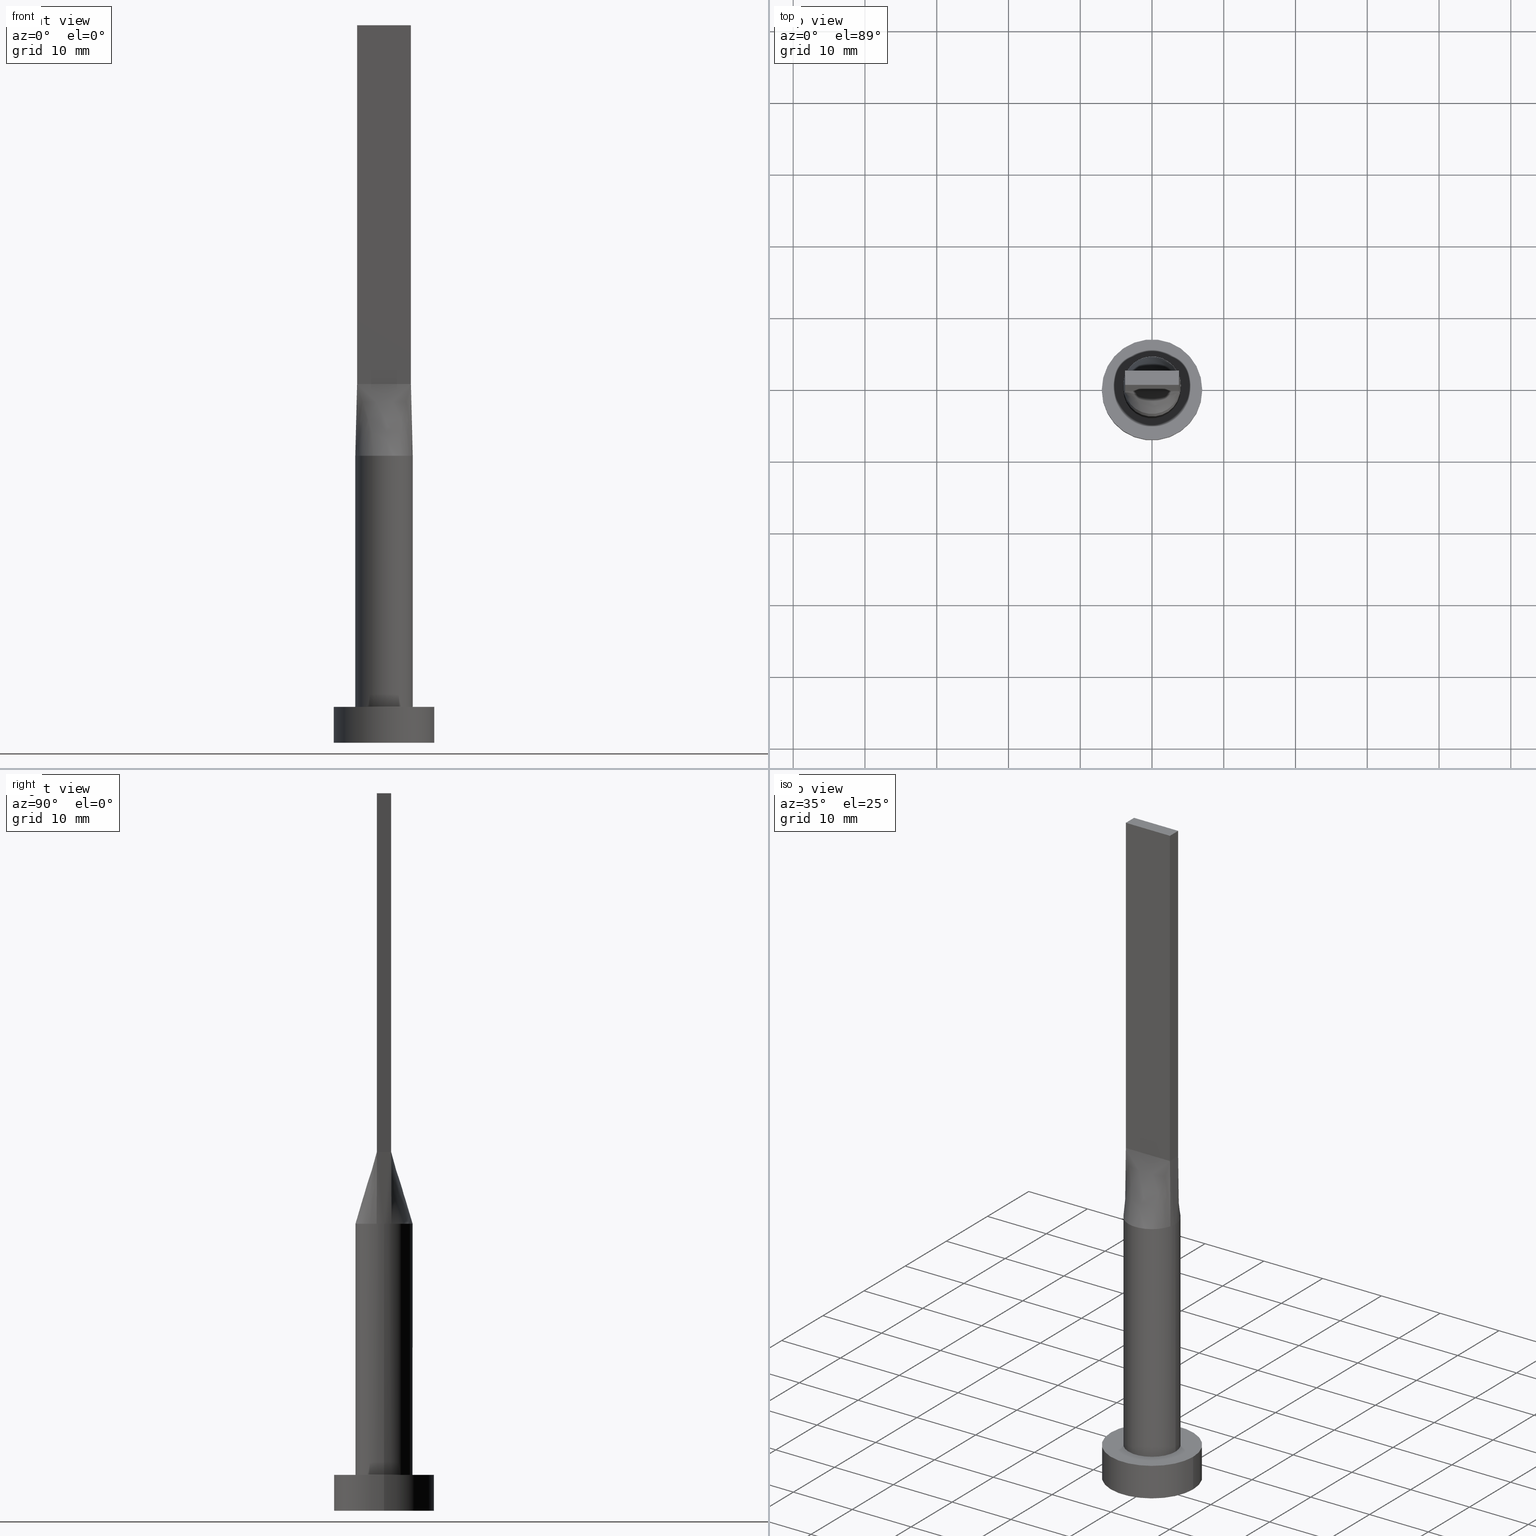
[diagram: canonical four-view strip — front | top / right | iso, engineering-drawing reading convention]
A machine part, canonical four-view strip (front | top / right | iso — engineering-drawing reading convention). The complete STEP part file that produces these views, byte-faithful:
ISO-10303-21;
HEADER;
FILE_DESCRIPTION (( 'STEP AP203' ),
    '1' );
FILE_NAME ('767d.STEP',
    '2023-02-13T09:36:29',
    ( '' ),
    ( '' ),
    'SwSTEP 2.0',
    'SolidWorks 2019',
    '' );
FILE_SCHEMA (( 'CONFIG_CONTROL_DESIGN' ));
ENDSEC;

DATA;
#1 = COORDINATED_UNIVERSAL_TIME_OFFSET ( 1, 0, .AHEAD. ) ;
#2 = CIRCLE ( 'NONE', #190, 4.000000000000000000 ) ;
#3 = DIRECTION ( 'NONE',  ( 0.000000000000000000, -0.000000000000000000, -1.000000000000000000 ) ) ;
#4 = ORIENTED_EDGE ( 'NONE', *, *, #46, .F. ) ;
#5 = AXIS2_PLACEMENT_3D ( 'NONE', #186, #388, #115 ) ;
#6 = DIRECTION ( 'NONE',  ( -0.000000000000000000, -0.000000000000000000, -1.000000000000000000 ) ) ;
#7 = APPROVAL_STATUS ( 'not_yet_approved' ) ;
#8 = VERTEX_POINT ( 'NONE', #10 ) ;
#9 = DATE_AND_TIME ( #417, #577 ) ;
#10 = CARTESIAN_POINT ( 'NONE',  ( 3.750000000000000000, 1.000000000000000000, 50.00000000000000000 ) ) ;
#11 = AXIS2_PLACEMENT_3D ( 'NONE', #215, #263, #35 ) ;
#12 = APPROVAL_PERSON_ORGANIZATION ( #230, #24, #274 ) ;
#13 = CARTESIAN_POINT ( 'NONE',  ( 1.250000000000001554, -0.9999999999999995559, 50.00000000000000000 ) ) ;
#14 = CARTESIAN_POINT ( 'NONE',  ( 1.249999999999999334, 1.000000000000000000, 50.00000000000000711 ) ) ;
#15 = EDGE_CURVE ( 'NONE', #191, #323, #188, .T. ) ;
#16 = CARTESIAN_POINT ( 'NONE',  ( 3.750000000000000000, 1.000000000000000000, 100.0000000000000000 ) ) ;
#17 = CARTESIAN_POINT ( 'NONE',  ( -3.125000000000000000, 1.000000000000000000, 50.00000000000000000 ) ) ;
#18 = APPROVAL_ROLE ( '' ) ;
#19 = CARTESIAN_POINT ( 'NONE',  ( -3.267840578657194239, -2.338604872288696956, 40.00000000000000000 ) ) ;
#20 = CARTESIAN_POINT ( 'NONE',  ( -1.250000000000000444, 1.000000000000000000, 50.00000000000000000 ) ) ;
#21 = APPLICATION_CONTEXT ( 'configuration controlled 3d designs of mechanical parts and assemblies' ) ;
#22 = EDGE_LOOP ( 'NONE', ( #206, #496, #236, #58 ) ) ;
#23 = LOCAL_TIME ( 10, 36, 29.00000000000000000, #380 ) ;
#24 = APPROVAL ( #579, 'NEUR�EN�' ) ;
#25 = LINE ( 'NONE', #386, #199 ) ;
#26 = CARTESIAN_POINT ( 'NONE',  ( 3.865212754195084699, 1.030724393897464841, 40.00000000000000000 ) ) ;
#27 = EDGE_LOOP ( 'NONE', ( #327, #463, #165, #419 ) ) ;
#28 = CARTESIAN_POINT ( 'NONE',  ( -3.124999999999999112, -0.9999999999999991118, 50.00000000000000000 ) ) ;
#29 = CARTESIAN_POINT ( 'NONE',  ( 1.940702937457743582, 3.532374760555930582, 40.00000000000000000 ) ) ;
#30 = VERTEX_POINT ( 'NONE', #101 ) ;
#31 = CARTESIAN_POINT ( 'NONE',  ( 0.000000000000000000, 0.000000000000000000, 5.000000000000000000 ) ) ;
#32 = DIRECTION ( 'NONE',  ( -0.000000000000000000, -0.000000000000000000, -1.000000000000000000 ) ) ;
#33 = AXIS2_PLACEMENT_3D ( 'NONE', #31, #528, #86 ) ;
#34 = AXIS2_PLACEMENT_3D ( 'NONE', #209, #555, #338 ) ;
#35 = DIRECTION ( 'NONE',  ( 1.000000000000000000, 0.000000000000000000, 0.000000000000000000 ) ) ;
#36 = FACE_OUTER_BOUND ( 'NONE', #84, .T. ) ;
#37 = EDGE_LOOP ( 'NONE', ( #499, #148, #304, #250 ) ) ;
#38 = EDGE_CURVE ( 'NONE', #30, #573, #104, .T. ) ;
#39 = FACE_OUTER_BOUND ( 'NONE', #566, .T. ) ;
#40 =( NAMED_UNIT ( * ) SI_UNIT ( $, .STERADIAN. ) SOLID_ANGLE_UNIT ( ) );
#41 = DESIGN_CONTEXT ( 'detailed design', #21, 'design' ) ;
#42 = ORIENTED_EDGE ( 'NONE', *, *, #38, .F. ) ;
#43 = CARTESIAN_POINT ( 'NONE',  ( 3.953459813730020311, 0.6987003947724492736, 40.00000000000000000 ) ) ;
#44 = CARTESIAN_POINT ( 'NONE',  ( 0.000000000000000000, 0.000000000000000000, 40.00000000000000000 ) ) ;
#45 = FACE_OUTER_BOUND ( 'NONE', #373, .T. ) ;
#46 = EDGE_CURVE ( 'NONE', #8, #281, #371, .T. ) ;
#47 = CC_DESIGN_APPROVAL ( #24, ( #444 ) ) ;
#48 = PLANE ( 'NONE',  #183 ) ;
#49 = CARTESIAN_POINT ( 'NONE',  ( -3.953459813730020311, -0.6987003947724488295, 40.00000000000000000 ) ) ;
#50 = PLANE ( 'NONE',  #387 ) ;
#51 = CALENDAR_DATE ( 2023, 13, 2 ) ;
#52 = EDGE_LOOP ( 'NONE', ( #412, #122, #64, #108 ) ) ;
#53 = FACE_OUTER_BOUND ( 'NONE', #27, .T. ) ;
#54 = PERSON_AND_ORGANIZATION ( #214, #149 ) ;
#55 = CARTESIAN_POINT ( 'NONE',  ( 3.807469879202492802, -1.015325301120664214, 45.00000000000000000 ) ) ;
#56 = AXIS2_PLACEMENT_3D ( 'NONE', #481, #406, #177 ) ;
#57 = EDGE_CURVE ( 'NONE', #529, #30, #237, .T. ) ;
#58 = ORIENTED_EDGE ( 'NONE', *, *, #57, .T. ) ;
#59 = ORIENTED_EDGE ( 'NONE', *, *, #273, .T. ) ;
#60 = PERSON_AND_ORGANIZATION ( #214, #149 ) ;
#61 = DIRECTION ( 'NONE',  ( 0.000000000000000000, 0.000000000000000000, 1.000000000000000000 ) ) ;
#62 = CC_DESIGN_DATE_AND_TIME_ASSIGNMENT ( #320, #282, ( #174 ) ) ;
#63 = CARTESIAN_POINT ( 'NONE',  ( 3.267840578657193795, 2.338604872288698289, 40.00000000000000000 ) ) ;
#64 = ORIENTED_EDGE ( 'NONE', *, *, #105, .F. ) ;
#65 = PRODUCT ( '767d', '767d', '', ( #129 ) ) ;
#66 = PERSON_AND_ORGANIZATION_ROLE ( 'creator' ) ;
#67 = CARTESIAN_POINT ( 'NONE',  ( -3.653499896451231521, -1.673258289339057514, 40.00000000000001421 ) ) ;
#68 = CARTESIAN_POINT ( 'NONE',  ( -3.009488128496037529, 2.672487015486668671, 39.99999999999998579 ) ) ;
#69 = ORIENTED_EDGE ( 'NONE', *, *, #372, .T. ) ;
#70 = DIRECTION ( 'NONE',  ( 1.000000000000000000, -8.673617379884035472E-17, 0.000000000000000000 ) ) ;
#71 = FACE_OUTER_BOUND ( 'NONE', #216, .T. ) ;
#72 = VERTEX_POINT ( 'NONE', #278 ) ;
#73 = EDGE_CURVE ( 'NONE', #30, #323, #459, .T. ) ;
#74 = CARTESIAN_POINT ( 'NONE',  ( -3.750000000000000000, -0.9999999999999991118, 50.00000000000000000 ) ) ;
#75 = AXIS2_PLACEMENT_3D ( 'NONE', #526, #524, #489 ) ;
#76 = CARTESIAN_POINT ( 'NONE',  ( 3.124999999999999112, 1.000000000000000000, 50.00000000000000000 ) ) ;
#77 = ORIENTED_EDGE ( 'NONE', *, *, #413, .F. ) ;
#78 = CIRCLE ( 'NONE', #475, 4.000000000000000000 ) ;
#79 = DIRECTION ( 'NONE',  ( -0.000000000000000000, -0.000000000000000000, -1.000000000000000000 ) ) ;
#80 = CARTESIAN_POINT ( 'NONE',  ( 1.023074425454087999, 3.898373771260456255, 40.00000000000000000 ) ) ;
#81 = CARTESIAN_POINT ( 'NONE',  ( -3.009488128496037529, 2.672487015486668671, 39.99999999999998579 ) ) ;
#82 = FACE_OUTER_BOUND ( 'NONE', #37, .T. ) ;
#83 = CARTESIAN_POINT ( 'NONE',  ( 3.953459813730019423, -0.6987003947724502728, 40.00000000000000000 ) ) ;
#84 = EDGE_LOOP ( 'NONE', ( #398, #59, #192, #175 ) ) ;
#85 = LOCAL_TIME ( 10, 36, 29.00000000000000000, #1 ) ;
#86 = DIRECTION ( 'NONE',  ( 1.000000000000000000, 0.000000000000000000, 0.000000000000000000 ) ) ;
#87 = DIRECTION ( 'NONE',  ( 1.000000000000000000, -6.217248937900876626E-15, 0.000000000000000000 ) ) ;
#88 = LINE ( 'NONE', #267, #111 ) ;
#89 = CARTESIAN_POINT ( 'NONE',  ( -3.865220763612065902, -1.030726602927787949, 40.00000000000000000 ) ) ;
#90 = EDGE_CURVE ( 'NONE', #234, #431, #2, .T. ) ;
#91 = CARTESIAN_POINT ( 'NONE',  ( -3.781952206537765537, 1.341853921743403788, 40.00000000000000000 ) ) ;
#92 =( NAMED_UNIT ( * ) PLANE_ANGLE_UNIT ( ) SI_UNIT ( $, .RADIAN. ) );
#93 = VECTOR ( 'NONE', #146, 1000.000000000000000 ) ;
#94 = LINE ( 'NONE', #179, #435 ) ;
#95 = CIRCLE ( 'NONE', #5, 7.000000000000000000 ) ;
#96 = CARTESIAN_POINT ( 'NONE',  ( -7.000000000000000000, 0.000000000000000000, 5.000000000000000000 ) ) ;
#97 = DATE_AND_TIME ( #181, #85 ) ;
#98 = DIRECTION ( 'NONE',  ( -0.01149316269309399834, -0.003064843384825015424, -0.9999292544707033548 ) ) ;
#99 = DIRECTION ( 'NONE',  ( 0.000000000000000000, -1.000000000000000000, 0.000000000000000000 ) ) ;
#100 = APPLICATION_PROTOCOL_DEFINITION ( 'international standard', 'config_control_design', 1994, #21 ) ;
#101 = CARTESIAN_POINT ( 'NONE',  ( -3.750000000000000000, -0.9999999999999991118, 50.00000000000000000 ) ) ;
#102 = ADVANCED_FACE ( 'NONE', ( #429, #346 ), #470, .T. ) ;
#103 = ORIENTED_EDGE ( 'NONE', *, *, #422, .T. ) ;
#104 = LINE ( 'NONE', #378, #359 ) ;
#105 = EDGE_CURVE ( 'NONE', #358, #527, #512, .T. ) ;
#106 = CARTESIAN_POINT ( 'NONE',  ( -3.781952206537765981, -1.341853921743402900, 39.99999999999999289 ) ) ;
#107 = DIRECTION ( 'NONE',  ( 0.000000000000000000, 0.000000000000000000, 1.000000000000000000 ) ) ;
#108 = ORIENTED_EDGE ( 'NONE', *, *, #145, .T. ) ;
#109 = CARTESIAN_POINT ( 'NONE',  ( 3.437500000000000444, -0.9999999999999995559, 50.00000000000000000 ) ) ;
#110 = CARTESIAN_POINT ( 'NONE',  ( 3.781952206537764205, 1.341853921743403788, 39.99999999999999289 ) ) ;
#111 = VECTOR ( 'NONE', #269, 1000.000000000000000 ) ;
#112 = VECTOR ( 'NONE', #161, 1000.000000000000000 ) ;
#113 = ORIENTED_EDGE ( 'NONE', *, *, #366, .F. ) ;
#114 = LINE ( 'NONE', #554, #411 ) ;
#115 = DIRECTION ( 'NONE',  ( 1.000000000000000000, 0.000000000000000000, 0.000000000000000000 ) ) ;
#116 = CARTESIAN_POINT ( 'NONE',  ( 3.865212754195084699, 1.030724393897464841, 40.00000000000000000 ) ) ;
#117 = DIRECTION ( 'NONE',  ( -1.000000000000000000, 0.000000000000000000, 0.000000000000000000 ) ) ;
#118 = ADVANCED_FACE ( 'NONE', ( #502 ), #420, .T. ) ;
#119 = CLOSED_SHELL ( 'NONE', ( #160, #198, #462, #102, #168, #246, #118, #266, #311, #472, #356, #570, #279, #317, #551 ) ) ;
#120 = CARTESIAN_POINT ( 'NONE',  ( -2.499999999999998668, -0.9999999999999991118, 50.00000000000000000 ) ) ;
#121 = DIRECTION ( 'NONE',  ( -0.000000000000000000, -0.000000000000000000, -1.000000000000000000 ) ) ;
#122 = ORIENTED_EDGE ( 'NONE', *, *, #137, .F. ) ;
#123 = CIRCLE ( 'NONE', #414, 4.000000000000000000 ) ;
#124 = CARTESIAN_POINT ( 'NONE',  ( -0.5121855420560009753, 4.000000000000000888, 40.00000000000000000 ) ) ;
#125 = DIRECTION ( 'NONE',  ( -0.000000000000000000, -0.000000000000000000, -1.000000000000000000 ) ) ;
#126 = ORIENTED_EDGE ( 'NONE', *, *, #532, .T. ) ;
#127 = EDGE_CURVE ( 'NONE', #389, #401, #25, .T. ) ;
#128 = CARTESIAN_POINT ( 'NONE',  ( 4.000000000000000000, -0.3494497975066829798, 39.99999999999999289 ) ) ;
#129 = MECHANICAL_CONTEXT ( 'NONE', #318, 'mechanical' ) ;
#130 = EDGE_LOOP ( 'NONE', ( #569, #504, #151, #544 ) ) ;
#131 = CARTESIAN_POINT ( 'NONE',  ( 3.749999999999999556, -0.3333333333333329818, 50.00000000000000000 ) ) ;
#132 = PERSON_AND_ORGANIZATION ( #214, #149 ) ;
#133 = ORIENTED_EDGE ( 'NONE', *, *, #15, .F. ) ;
#134 = CIRCLE ( 'NONE', #253, 4.000000000000000000 ) ;
#135 = CYLINDRICAL_SURFACE ( 'NONE', #574, 4.000000000000000000 ) ;
#136 = CARTESIAN_POINT ( 'NONE',  ( 3.750000000000000000, -0.9999999999999997780, 100.0000000000000000 ) ) ;
#137 = EDGE_CURVE ( 'NONE', #527, #281, #114, .T. ) ;
#138 = DIRECTION ( 'NONE',  ( -0.01149316269309399834, 0.003064843384825015424, 0.9999292544707033548 ) ) ;
#139 = DIRECTION ( 'NONE',  ( 8.673617379884035472E-17, 1.000000000000000000, -0.000000000000000000 ) ) ;
#140 = CARTESIAN_POINT ( 'NONE',  ( -3.750000000000000000, -0.9999999999999991118, 100.0000000000000000 ) ) ;
#141 = CARTESIAN_POINT ( 'NONE',  ( -3.749999999999999556, 0.3333333333333337034, 50.00000000000000000 ) ) ;
#142 = LINE ( 'NONE', #455, #369 ) ;
#143 = CIRCLE ( 'NONE', #34, 4.000000000000000000 ) ;
#144 = CARTESIAN_POINT ( 'NONE',  ( -3.864939758404985604, -1.030650602241328428, 40.00000000000000000 ) ) ;
#145 = EDGE_CURVE ( 'NONE', #358, #8, #437, .T. ) ;
#146 = DIRECTION ( 'NONE',  ( -1.000000000000000000, -0.000000000000000000, -0.000000000000000000 ) ) ;
#147 = ORIENTED_EDGE ( 'NONE', *, *, #532, .F. ) ;
#148 = ORIENTED_EDGE ( 'NONE', *, *, #57, .F. ) ;
#149 = ORGANIZATION ( 'NEUR�EN�', 'NEUR�EN�', '' ) ;
#150 = EDGE_CURVE ( 'NONE', #431, #563, #581, .T. ) ;
#151 = ORIENTED_EDGE ( 'NONE', *, *, #73, .F. ) ;
#152 = CARTESIAN_POINT ( 'NONE',  ( -1.023074425454088221, 3.898373771260455811, 40.00000000000000000 ) ) ;
#153 = DATE_TIME_ROLE ( 'classification_date' ) ;
#154 = CARTESIAN_POINT ( 'NONE',  ( 0.000000000000000000, 0.000000000000000000, 5.000000000000000000 ) ) ;
#155 = CARTESIAN_POINT ( 'NONE',  ( -2.346407003458401253, 3.270103945996944095, 40.00000000000000000 ) ) ;
#156 = DIRECTION ( 'NONE',  ( 1.000000000000000000, 0.000000000000000000, -0.000000000000000000 ) ) ;
#157 = CARTESIAN_POINT ( 'NONE',  ( -4.000000000000000000, 0.000000000000000000, 5.000000000000000000 ) ) ;
#158 = AXIS2_PLACEMENT_3D ( 'NONE', #268, #482, #306 ) ;
#159 = CARTESIAN_POINT ( 'NONE',  ( 1.023074425454087555, -3.898373771260455811, 40.00000000000000000 ) ) ;
#160 = ADVANCED_FACE ( 'NONE', ( #39 ), #135, .T. ) ;
#161 = DIRECTION ( 'NONE',  ( -0.000000000000000000, -0.000000000000000000, -1.000000000000000000 ) ) ;
#162 = DATE_AND_TIME ( #511, #23 ) ;
#163 = CARTESIAN_POINT ( 'NONE',  ( 3.750000000000000000, 1.000000000000000000, 100.0000000000000000 ) ) ;
#164 = DIRECTION ( 'NONE',  ( 0.000000000000000000, 0.000000000000000000, 1.000000000000000000 ) ) ;
#165 = ORIENTED_EDGE ( 'NONE', *, *, #500, .F. ) ;
#166 = FACE_OUTER_BOUND ( 'NONE', #421, .T. ) ;
#167 = ORIENTED_EDGE ( 'NONE', *, *, #558, .F. ) ;
#168 = ADVANCED_FACE ( 'NONE', ( #166 ), #571, .F. ) ;
#169 = CARTESIAN_POINT ( 'NONE',  ( -1.023074425454088221, 3.898373771260455811, 40.00000000000000000 ) ) ;
#170 = DIRECTION ( 'NONE',  ( 1.000000000000000000, 0.000000000000000000, -0.000000000000000000 ) ) ;
#171 = FACE_OUTER_BOUND ( 'NONE', #395, .T. ) ;
#172 = ORIENTED_EDGE ( 'NONE', *, *, #299, .F. ) ;
#173 = CARTESIAN_POINT ( 'NONE',  ( 3.865244591400370577, -1.030732999276501527, 40.00000000000000000 ) ) ;
#174 = PRODUCT_DEFINITION ( 'NEZN�M�', '', #444, #41 ) ;
#175 = ORIENTED_EDGE ( 'NONE', *, *, #500, .T. ) ;
#176 = VECTOR ( 'NONE', #441, 1000.000000000000000 ) ;
#177 = DIRECTION ( 'NONE',  ( -1.000000000000000000, 0.000000000000000000, 0.000000000000000000 ) ) ;
#178 = CARTESIAN_POINT ( 'NONE',  ( 3.807469879202492358, 1.015325301120664436, 45.00000000000000000 ) ) ;
#179 = CARTESIAN_POINT ( 'NONE',  ( 3.750000000000000000, 1.000000000000000000, 50.00000000000000000 ) ) ;
#180 = DIRECTION ( 'NONE',  ( -1.000000000000000000, 0.000000000000000000, 0.000000000000000000 ) ) ;
#181 = CALENDAR_DATE ( 2023, 13, 2 ) ;
#182 = CARTESIAN_POINT ( 'NONE',  ( 3.750000000000000000, 1.000000000000000000, 100.0000000000000000 ) ) ;
#183 = AXIS2_PLACEMENT_3D ( 'NONE', #525, #312, #393 ) ;
#184 = ORIENTED_EDGE ( 'NONE', *, *, #422, .F. ) ;
#185 = B_SPLINE_SURFACE_WITH_KNOTS ( 'NONE', 3, 1, ( 
 ( #310, #357 ),
 ( #83, #394 ),
 ( #128, #131 ),
 ( #259, #314 ),
 ( #43, #484 ),
 ( #360, #487 ) ),
 .UNSPECIFIED., .F., .F., .F.,
 ( 4, 2, 4 ),
 ( 2, 2 ),
 ( 0.000000000000000000, 0.5000000000000000000, 1.000000000000000000 ),
 ( 0.000000000000000000, 1.000000000000000000 ),
 .UNSPECIFIED. ) ;
#186 = CARTESIAN_POINT ( 'NONE',  ( 0.000000000000000000, 0.000000000000000000, 0.000000000000000000 ) ) ;
#187 = EDGE_LOOP ( 'NONE', ( #167, #210, #69, #276 ) ) ;
#188 = LINE ( 'NONE', #55, #286 ) ;
#189 = CC_DESIGN_PERSON_AND_ORGANIZATION_ASSIGNMENT ( #506, #546, ( #444 ) ) ;
#190 = AXIS2_PLACEMENT_3D ( 'NONE', #561, #248, #251 ) ;
#191 = VERTEX_POINT ( 'NONE', #173 ) ;
#192 = ORIENTED_EDGE ( 'NONE', *, *, #478, .T. ) ;
#193 = CARTESIAN_POINT ( 'NONE',  ( 1.940702937457743360, -3.532374760555930582, 40.00000000000000000 ) ) ;
#194 = CARTESIAN_POINT ( 'NONE',  ( -0.6250000000000006661, 1.000000000000000000, 50.00000000000000000 ) ) ;
#195 = COORDINATED_UNIVERSAL_TIME_OFFSET ( 1, 0, .AHEAD. ) ;
#196 = CARTESIAN_POINT ( 'NONE',  ( -2.187499999999999112, -0.9999999999999993339, 50.00000000000000000 ) ) ;
#197 = CARTESIAN_POINT ( 'NONE',  ( -3.267840578657194239, 2.338604872288698289, 40.00000000000000711 ) ) ;
#198 = ADVANCED_FACE ( 'NONE', ( #224 ), #349, .T. ) ;
#199 = VECTOR ( 'NONE', #427, 1000.000000000000000 ) ;
#200 = CARTESIAN_POINT ( 'NONE',  ( -0.3124999999999982236, -0.9999999999999993339, 50.00000000000000711 ) ) ;
#201 = CARTESIAN_POINT ( 'NONE',  ( 0.000000000000000000, 0.000000000000000000, 5.000000000000000000 ) ) ;
#202 = APPROVAL_PERSON_ORGANIZATION ( #54, #220, #407 ) ;
#203 = ORIENTED_EDGE ( 'NONE', *, *, #90, .T. ) ;
#204 = CARTESIAN_POINT ( 'NONE',  ( 3.864939758404985604, -1.030650602241328873, 40.00000000000000000 ) ) ;
#205 = CYLINDRICAL_SURFACE ( 'NONE', #303, 7.000000000000000000 ) ;
#206 = ORIENTED_EDGE ( 'NONE', *, *, #73, .T. ) ;
#207 = CARTESIAN_POINT ( 'NONE',  ( 0.3125000000000018319, -0.9999999999999995559, 50.00000000000000711 ) ) ;
#208 = PRODUCT_RELATED_PRODUCT_CATEGORY ( 'detail', '', ( #65 ) ) ;
#209 = CARTESIAN_POINT ( 'NONE',  ( 0.000000000000000000, 0.000000000000000000, 5.000000000000000000 ) ) ;
#210 = ORIENTED_EDGE ( 'NONE', *, *, #513, .F. ) ;
#211 = CARTESIAN_POINT ( 'NONE',  ( 7.000000000000000000, 8.572527594031473190E-16, 5.000000000000000000 ) ) ;
#212 = LINE ( 'NONE', #350, #176 ) ;
#213 = ORIENTED_EDGE ( 'NONE', *, *, #440, .F. ) ;
#214 = PERSON ( 'NEUR�EN�', 'NEUR�EN�', 'NEUR�EN�', ('NEUR�EN�'), ('NEUR�EN�'), ('NEUR�EN�') ) ;
#215 = CARTESIAN_POINT ( 'NONE',  ( 0.000000000000000000, 0.000000000000000000, 40.00000000000000000 ) ) ;
#216 = EDGE_LOOP ( 'NONE', ( #533, #547, #4, #418 ) ) ;
#217 = DIRECTION ( 'NONE',  ( -1.000000000000000000, 0.000000000000000000, 0.000000000000000000 ) ) ;
#218 = DIRECTION ( 'NONE',  ( 0.000000000000000000, 0.000000000000000000, 1.000000000000000000 ) ) ;
#219 = VERTEX_POINT ( 'NONE', #307 ) ;
#220 = APPROVAL ( #7, 'NEUR�EN�' ) ;
#221 = CARTESIAN_POINT ( 'NONE',  ( -3.750000000000000000, -0.9999999999999991118, 100.0000000000000000 ) ) ;
#222 =( LENGTH_UNIT ( ) NAMED_UNIT ( * ) SI_UNIT ( .MILLI., .METRE. ) );
#223 = AXIS2_PLACEMENT_3D ( 'NONE', #580, #180, #368 ) ;
#224 = FACE_OUTER_BOUND ( 'NONE', #456, .T. ) ;
#225 = PERSON_AND_ORGANIZATION_ROLE ( 'design_owner' ) ;
#226 = CARTESIAN_POINT ( 'NONE',  ( 3.750000000000000000, -0.9999999999999997780, 100.0000000000000000 ) ) ;
#227 = EDGE_CURVE ( 'NONE', #573, #191, #520, .T. ) ;
#228 = UNCERTAINTY_MEASURE_WITH_UNIT (LENGTH_MEASURE( 1.000000000000000082E-05 ), #222, 'distance_accuracy_value', 'NONE');
#229 = DIRECTION ( 'NONE',  ( 0.000000000000000000, -1.000000000000000000, 0.000000000000000000 ) ) ;
#230 = PERSON_AND_ORGANIZATION ( #214, #149 ) ;
#231 = ORIENTED_EDGE ( 'NONE', *, *, #558, .T. ) ;
#232 = LINE ( 'NONE', #415, #405 ) ;
#233 = CC_DESIGN_APPROVAL ( #289, ( #486 ) ) ;
#234 = VERTEX_POINT ( 'NONE', #399 ) ;
#235 = EDGE_CURVE ( 'NONE', #242, #348, #287, .T. ) ;
#236 = ORIENTED_EDGE ( 'NONE', *, *, #478, .F. ) ;
#237 = LINE ( 'NONE', #326, #530 ) ;
#238 = PERSON_AND_ORGANIZATION_ROLE ( 'classification_officer' ) ;
#239 = CARTESIAN_POINT ( 'NONE',  ( -1.562499999999998890, -0.9999999999999993339, 50.00000000000000711 ) ) ;
#240 = APPROVAL_PERSON_ORGANIZATION ( #247, #289, #18 ) ;
#241 = CARTESIAN_POINT ( 'NONE',  ( 2.187499999999999556, 1.000000000000000000, 50.00000000000000000 ) ) ;
#242 = VERTEX_POINT ( 'NONE', #211 ) ;
#243 = APPROVAL_DATE_TIME ( #433, #289 ) ;
#244 = CARTESIAN_POINT ( 'NONE',  ( 3.267840578657194239, -2.338604872288699177, 40.00000000000000711 ) ) ;
#245 = CARTESIAN_POINT ( 'NONE',  ( -2.187500000000000444, 1.000000000000000000, 50.00000000000000000 ) ) ;
#246 = ADVANCED_FACE ( 'NONE', ( #45 ), #402, .T. ) ;
#247 = PERSON_AND_ORGANIZATION ( #214, #149 ) ;
#248 = DIRECTION ( 'NONE',  ( 0.000000000000000000, 0.000000000000000000, 1.000000000000000000 ) ) ;
#249 = CARTESIAN_POINT ( 'NONE',  ( 0.5121855420560009753, 4.000000000000000888, 40.00000000000000000 ) ) ;
#250 = ORIENTED_EDGE ( 'NONE', *, *, #137, .T. ) ;
#251 = DIRECTION ( 'NONE',  ( 1.000000000000000000, 0.000000000000000000, 0.000000000000000000 ) ) ;
#252 = FACE_OUTER_BOUND ( 'NONE', #187, .T. ) ;
#253 = AXIS2_PLACEMENT_3D ( 'NONE', #44, #572, #87 ) ;
#254 = EDGE_LOOP ( 'NONE', ( #332, #362 ) ) ;
#255 = CC_DESIGN_PERSON_AND_ORGANIZATION_ASSIGNMENT ( #336, #238, ( #486 ) ) ;
#256 = CARTESIAN_POINT ( 'NONE',  ( 3.009488128496037085, 2.672487015486669115, 40.00000000000000000 ) ) ;
#257 = CARTESIAN_POINT ( 'NONE',  ( -0.5121855420560009753, 4.000000000000000888, 40.00000000000000000 ) ) ;
#258 = DIRECTION ( 'NONE',  ( -0.000000000000000000, -0.000000000000000000, -1.000000000000000000 ) ) ;
#259 = CARTESIAN_POINT ( 'NONE',  ( 3.999999999999999112, 0.3494497975066819251, 39.99999999999998579 ) ) ;
#260 = CARTESIAN_POINT ( 'NONE',  ( -3.750000000000000000, 1.000000000000000000, 50.00000000000000000 ) ) ;
#261 = ORIENTED_EDGE ( 'NONE', *, *, #448, .F. ) ;
#262 = VECTOR ( 'NONE', #308, 1000.000000000000000 ) ;
#263 = DIRECTION ( 'NONE',  ( 0.000000000000000000, 0.000000000000000000, 1.000000000000000000 ) ) ;
#264 = CARTESIAN_POINT ( 'NONE',  ( -7.000000000000000000, 0.000000000000000000, 0.000000000000000000 ) ) ;
#265 = ORIENTED_EDGE ( 'NONE', *, *, #457, .F. ) ;
#266 = ADVANCED_FACE ( 'NONE', ( #171 ), #185, .T. ) ;
#267 = CARTESIAN_POINT ( 'NONE',  ( -3.750000000000000000, 1.000000000000000000, 100.0000000000000000 ) ) ;
#268 = CARTESIAN_POINT ( 'NONE',  ( 0.000000000000000000, 0.000000000000000000, 5.000000000000000000 ) ) ;
#269 = DIRECTION ( 'NONE',  ( 0.000000000000000000, -1.000000000000000000, 0.000000000000000000 ) ) ;
#270 = AXIS2_PLACEMENT_3D ( 'NONE', #575, #258, #534 ) ;
#271 = VECTOR ( 'NONE', #125, 1000.000000000000000 ) ;
#272 = CARTESIAN_POINT ( 'NONE',  ( -3.864939758404985160, 1.030650602241329317, 40.00000000000000000 ) ) ;
#273 = EDGE_CURVE ( 'NONE', #527, #529, #88, .T. ) ;
#274 = APPROVAL_ROLE ( '' ) ;
#275 = FACE_OUTER_BOUND ( 'NONE', #52, .T. ) ;
#276 = ORIENTED_EDGE ( 'NONE', *, *, #379, .T. ) ;
#277 = CARTESIAN_POINT ( 'NONE',  ( -3.750000000000000000, 1.000000000000000000, 50.00000000000000000 ) ) ;
#278 = CARTESIAN_POINT ( 'NONE',  ( 7.000000000000000000, 8.572527594031473190E-16, 0.000000000000000000 ) ) ;
#279 = ADVANCED_FACE ( 'NONE', ( #449 ), #364, .F. ) ;
#280 = CIRCLE ( 'NONE', #158, 7.000000000000000000 ) ;
#281 = VERTEX_POINT ( 'NONE', #277 ) ;
#282 = DATE_TIME_ROLE ( 'creation_date' ) ;
#283 = ORIENTED_EDGE ( 'NONE', *, *, #432, .F. ) ;
#284 = CARTESIAN_POINT ( 'NONE',  ( -1.249999999999998446, -0.9999999999999993339, 50.00000000000000711 ) ) ;
#285 = CARTESIAN_POINT ( 'NONE',  ( 0.000000000000000000, 0.000000000000000000, 40.00000000000000000 ) ) ;
#286 = VECTOR ( 'NONE', #138, 1000.000000000000114 ) ;
#287 = CIRCLE ( 'NONE', #33, 7.000000000000000000 ) ;
#288 = CARTESIAN_POINT ( 'NONE',  ( 3.750000000000000000, -0.9999999999999997780, 50.00000000000000000 ) ) ;
#289 = APPROVAL ( #345, 'NEUR�EN�' ) ;
#290 = AXIS2_PLACEMENT_3D ( 'NONE', #221, #139, #316 ) ;
#291 = CARTESIAN_POINT ( 'NONE',  ( -1.562500000000000444, 1.000000000000000000, 50.00000000000000000 ) ) ;
#292 = ORIENTED_EDGE ( 'NONE', *, *, #448, .T. ) ;
#293 = CARTESIAN_POINT ( 'NONE',  ( -1.023074425454088887, -3.898373771260456255, 40.00000000000000000 ) ) ;
#294 = CARTESIAN_POINT ( 'NONE',  ( 3.437499999999999556, 1.000000000000000000, 50.00000000000000000 ) ) ;
#295 = ORIENTED_EDGE ( 'NONE', *, *, #432, .T. ) ;
#296 = CARTESIAN_POINT ( 'NONE',  ( 3.653499896451231521, 1.673258289339057958, 40.00000000000001421 ) ) ;
#297 = CARTESIAN_POINT ( 'NONE',  ( 3.864939758404985160, 1.030650602241329539, 40.00000000000000000 ) ) ;
#298 = ORIENTED_EDGE ( 'NONE', *, *, #379, .F. ) ;
#299 = EDGE_CURVE ( 'NONE', #323, #8, #94, .T. ) ;
#300 = VECTOR ( 'NONE', #79, 1000.000000000000000 ) ;
#301 = CARTESIAN_POINT ( 'NONE',  ( 0.6250000000000017764, -0.9999999999999995559, 50.00000000000000000 ) ) ;
#302 = CARTESIAN_POINT ( 'NONE',  ( 2.346407003458400808, 3.270103945996944983, 40.00000000000000000 ) ) ;
#303 = AXIS2_PLACEMENT_3D ( 'NONE', #514, #121, #117 ) ;
#304 = ORIENTED_EDGE ( 'NONE', *, *, #273, .F. ) ;
#305 = CARTESIAN_POINT ( 'NONE',  ( -3.267840578657194239, 2.338604872288698289, 40.00000000000000711 ) ) ;
#306 = DIRECTION ( 'NONE',  ( 1.000000000000000000, 0.000000000000000000, 0.000000000000000000 ) ) ;
#307 = CARTESIAN_POINT ( 'NONE',  ( 4.000000000000000000, 4.898587196589412829E-16, 5.000000000000000000 ) ) ;
#308 = DIRECTION ( 'NONE',  ( 1.000000000000000000, -8.673617379884035472E-17, 0.000000000000000000 ) ) ;
#309 = ORIENTED_EDGE ( 'NONE', *, *, #127, .F. ) ;
#310 = CARTESIAN_POINT ( 'NONE',  ( 3.864939758404985160, -1.030650602241329539, 40.00000000000000000 ) ) ;
#311 = ADVANCED_FACE ( 'NONE', ( #367 ), #505, .T. ) ;
#312 = DIRECTION ( 'NONE',  ( 0.000000000000000000, 0.000000000000000000, 1.000000000000000000 ) ) ;
#313 = VERTEX_POINT ( 'NONE', #226 ) ;
#314 = CARTESIAN_POINT ( 'NONE',  ( 3.749999999999999556, 0.3333333333333336479, 50.00000000000000000 ) ) ;
#315 = LINE ( 'NONE', #178, #545 ) ;
#316 = DIRECTION ( 'NONE',  ( -1.000000000000000000, 8.673617379884035472E-17, 0.000000000000000000 ) ) ;
#317 = ADVANCED_FACE ( 'NONE', ( #53 ), #408, .F. ) ;
#318 = APPLICATION_CONTEXT ( 'configuration controlled 3d designs of mechanical parts and assemblies' ) ;
#319 = CARTESIAN_POINT ( 'NONE',  ( -3.749999999999999556, -0.6666666666666658525, 50.00000000000000000 ) ) ;
#320 = DATE_AND_TIME ( #51, #330 ) ;
#321 = CIRCLE ( 'NONE', #460, 7.000000000000000000 ) ;
#322 = DIRECTION ( 'NONE',  ( 0.01149316269309399834, -0.003064843384824949939, 0.9999292544707033548 ) ) ;
#323 = VERTEX_POINT ( 'NONE', #578 ) ;
#324 = MANIFOLD_SOLID_BREP ( 'P�idat vysunut�m5', #119 ) ;
#325 = LINE ( 'NONE', #497, #329 ) ;
#326 = CARTESIAN_POINT ( 'NONE',  ( -3.750000000000000000, -0.9999999999999991118, 100.0000000000000000 ) ) ;
#327 = ORIENTED_EDGE ( 'NONE', *, *, #299, .T. ) ;
#328 = CC_DESIGN_PERSON_AND_ORGANIZATION_ASSIGNMENT ( #132, #225, ( #65 ) ) ;
#329 = VECTOR ( 'NONE', #99, 1000.000000000000000 ) ;
#330 = LOCAL_TIME ( 10, 36, 29.00000000000000000, #495 ) ;
#331 = PERSON_AND_ORGANIZATION_ROLE ( 'creator' ) ;
#332 = ORIENTED_EDGE ( 'NONE', *, *, #513, .T. ) ;
#333 = CARTESIAN_POINT ( 'NONE',  ( -3.864939758404985604, -1.030650602241328206, 40.00000000000000000 ) ) ;
#334 = CARTESIAN_POINT ( 'NONE',  ( 0.3124999999999993339, 1.000000000000000000, 50.00000000000000711 ) ) ;
#335 = B_SPLINE_SURFACE_WITH_KNOTS ( 'NONE', 3, 1, ( 
 ( #297, #347 ),
 ( #110, #294 ),
 ( #474, #76 ),
 ( #63, #519 ),
 ( #468, #241 ),
 ( #302, #477 ),
 ( #29, #14 ),
 ( #80, #548 ),
 ( #249, #334 ),
 ( #257, #438 ),
 ( #152, #194 ),
 ( #550, #20 ),
 ( #155, #291 ),
 ( #68, #245 ),
 ( #197, #428 ),
 ( #430, #17 ),
 ( #385, #553 ),
 ( #471, #260 ) ),
 .UNSPECIFIED., .F., .F., .F.,
 ( 4, 2, 2, 2, 2, 2, 2, 2, 4 ),
 ( 2, 2 ),
 ( 0.000000000000000000, 0.1250000000000000000, 0.2500000000000000000, 0.3750000000000000000, 0.5000000000000000000, 0.6250000000000000000, 0.7500000000000000000, 0.8750000000000000000, 1.000000000000000000 ),
 ( 0.000000000000000000, 1.000000000000000000 ),
 .UNSPECIFIED. ) ;
#336 = PERSON_AND_ORGANIZATION ( #214, #149 ) ;
#337 = CARTESIAN_POINT ( 'NONE',  ( 3.009488128496036641, -2.672487015486668671, 39.99999999999998579 ) ) ;
#338 = DIRECTION ( 'NONE',  ( 1.000000000000000000, 0.000000000000000000, 0.000000000000000000 ) ) ;
#339 = VECTOR ( 'NONE', #516, 1000.000000000000000 ) ;
#340 = CARTESIAN_POINT ( 'NONE',  ( 0.5121855420560003092, -3.999999999999999112, 40.00000000000000000 ) ) ;
#341 = LINE ( 'NONE', #391, #112 ) ;
#342 = DIRECTION ( 'NONE',  ( -0.000000000000000000, -0.000000000000000000, -1.000000000000000000 ) ) ;
#343 = EDGE_CURVE ( 'NONE', #563, #281, #142, .T. ) ;
#344 = CARTESIAN_POINT ( 'NONE',  ( 0.000000000000000000, 0.000000000000000000, 40.00000000000000000 ) ) ;
#345 = APPROVAL_STATUS ( 'not_yet_approved' ) ;
#346 = FACE_OUTER_BOUND ( 'NONE', #254, .T. ) ;
#347 = CARTESIAN_POINT ( 'NONE',  ( 3.750000000000000000, 1.000000000000000000, 50.00000000000000000 ) ) ;
#348 = VERTEX_POINT ( 'NONE', #96 ) ;
#349 = CYLINDRICAL_SURFACE ( 'NONE', #270, 7.000000000000000000 ) ;
#350 = CARTESIAN_POINT ( 'NONE',  ( 3.750000000000000000, -0.9999999999999997780, 100.0000000000000000 ) ) ;
#351 = LOCAL_TIME ( 10, 36, 29.00000000000000000, #195 ) ;
#352 = ORIENTED_EDGE ( 'NONE', *, *, #227, .F. ) ;
#353 = CARTESIAN_POINT ( 'NONE',  ( 0.000000000000000000, 0.000000000000000000, 40.00000000000000000 ) ) ;
#354 = APPLICATION_PROTOCOL_DEFINITION ( 'international standard', 'config_control_design', 1994, #318 ) ;
#355 = ORIENTED_EDGE ( 'NONE', *, *, #343, .F. ) ;
#356 = ADVANCED_FACE ( 'NONE', ( #275 ), #50, .F. ) ;
#357 = CARTESIAN_POINT ( 'NONE',  ( 3.750000000000000000, -1.000000000000000000, 50.00000000000000000 ) ) ;
#358 = VERTEX_POINT ( 'NONE', #182 ) ;
#359 = VECTOR ( 'NONE', #98, 1000.000000000000114 ) ;
#360 = CARTESIAN_POINT ( 'NONE',  ( 3.864939758404985160, 1.030650602241328873, 40.00000000000000000 ) ) ;
#361 = LINE ( 'NONE', #450, #423 ) ;
#362 = ORIENTED_EDGE ( 'NONE', *, *, #235, .T. ) ;
#363 = CIRCLE ( 'NONE', #564, 4.000000000000000000 ) ;
#364 = PLANE ( 'NONE',  #290 ) ;
#365 = CARTESIAN_POINT ( 'NONE',  ( 0.000000000000000000, 0.000000000000000000, 0.000000000000000000 ) ) ;
#366 = EDGE_CURVE ( 'NONE', #281, #30, #325, .T. ) ;
#367 = FACE_OUTER_BOUND ( 'NONE', #515, .T. ) ;
#368 = DIRECTION ( 'NONE',  ( 0.000000000000000000, 0.000000000000000000, 1.000000000000000000 ) ) ;
#369 = VECTOR ( 'NONE', #322, 1000.000000000000114 ) ;
#370 = CARTESIAN_POINT ( 'NONE',  ( -3.749999999999999556, 0.6666666666666668517, 50.00000000000000000 ) ) ;
#371 = LINE ( 'NONE', #539, #93 ) ;
#372 = EDGE_CURVE ( 'NONE', #348, #521, #232, .T. ) ;
#373 = EDGE_LOOP ( 'NONE', ( #184, #147, #352, #265, #560, #447 ) ) ;
#374 = APPROVAL_DATE_TIME ( #9, #220 ) ;
#375 = ORIENTED_EDGE ( 'NONE', *, *, #235, .F. ) ;
#376 = AXIS2_PLACEMENT_3D ( 'NONE', #365, #218, #568 ) ;
#377 = APPROVAL_DATE_TIME ( #97, #24 ) ;
#378 = CARTESIAN_POINT ( 'NONE',  ( -3.807469879202492802, -1.015325301120663548, 45.00000000000000000 ) ) ;
#379 = EDGE_CURVE ( 'NONE', #521, #72, #95, .T. ) ;
#380 = COORDINATED_UNIVERSAL_TIME_OFFSET ( 1, 0, .AHEAD. ) ;
#381 = CARTESIAN_POINT ( 'NONE',  ( -0.6249999999999982236, -0.9999999999999993339, 50.00000000000000711 ) ) ;
#382 = DIRECTION ( 'NONE',  ( 0.000000000000000000, 0.000000000000000000, 1.000000000000000000 ) ) ;
#383 = SECURITY_CLASSIFICATION_LEVEL ( 'unclassified' ) ;
#384 = CARTESIAN_POINT ( 'NONE',  ( 3.781952206537764205, 1.341853921743403788, 39.99999999999999289 ) ) ;
#385 = CARTESIAN_POINT ( 'NONE',  ( -3.781952206537765537, 1.341853921743403788, 40.00000000000000000 ) ) ;
#386 = CARTESIAN_POINT ( 'NONE',  ( -4.000000000000000000, 0.000000000000000000, 40.00000000000000000 ) ) ;
#387 = AXIS2_PLACEMENT_3D ( 'NONE', #458, #229, #3 ) ;
#388 = DIRECTION ( 'NONE',  ( 0.000000000000000000, 0.000000000000000000, 1.000000000000000000 ) ) ;
#389 = VERTEX_POINT ( 'NONE', #436 ) ;
#390 = CARTESIAN_POINT ( 'NONE',  ( 3.653499896451230633, -1.673258289339059068, 40.00000000000001421 ) ) ;
#391 = CARTESIAN_POINT ( 'NONE',  ( 4.000000000000000000, 4.898587196589412829E-16, 40.00000000000000000 ) ) ;
#392 = CARTESIAN_POINT ( 'NONE',  ( 3.781952206537765981, -1.341853921743404232, 40.00000000000000000 ) ) ;
#393 = DIRECTION ( 'NONE',  ( 1.000000000000000000, 0.000000000000000000, -0.000000000000000000 ) ) ;
#394 = CARTESIAN_POINT ( 'NONE',  ( 3.749999999999999556, -0.6666666666666664076, 50.00000000000000000 ) ) ;
#395 = EDGE_LOOP ( 'NONE', ( #126, #203, #461, #172, #133 ) ) ;
#396 = CC_DESIGN_PERSON_AND_ORGANIZATION_ASSIGNMENT ( #409, #331, ( #174 ) ) ;
#397 = CARTESIAN_POINT ( 'NONE',  ( 0.5121855420560009753, 4.000000000000000888, 40.00000000000000000 ) ) ;
#398 = ORIENTED_EDGE ( 'NONE', *, *, #105, .T. ) ;
#399 = CARTESIAN_POINT ( 'NONE',  ( 4.000000000000000000, -1.256865613583667397E-17, 39.99999999999999289 ) ) ;
#400 = LINE ( 'NONE', #140, #262 ) ;
#401 = VERTEX_POINT ( 'NONE', #157 ) ;
#402 = CYLINDRICAL_SURFACE ( 'NONE', #56, 4.000000000000000000 ) ;
#403 = CC_DESIGN_PERSON_AND_ORGANIZATION_ASSIGNMENT ( #60, #66, ( #444 ) ) ;
#404 = LINE ( 'NONE', #136, #271 ) ;
#405 = VECTOR ( 'NONE', #6, 1000.000000000000000 ) ;
#406 = DIRECTION ( 'NONE',  ( -0.000000000000000000, -0.000000000000000000, -1.000000000000000000 ) ) ;
#407 = APPROVAL_ROLE ( '' ) ;
#408 = PLANE ( 'NONE',  #223 ) ;
#409 = PERSON_AND_ORGANIZATION ( #214, #149 ) ;
#410 = CARTESIAN_POINT ( 'NONE',  ( -3.750000000000000000, -0.9999999999999991118, 50.00000000000000000 ) ) ;
#411 = VECTOR ( 'NONE', #342, 1000.000000000000000 ) ;
#412 = ORIENTED_EDGE ( 'NONE', *, *, #46, .T. ) ;
#413 = EDGE_CURVE ( 'NONE', #401, #219, #143, .T. ) ;
#414 = AXIS2_PLACEMENT_3D ( 'NONE', #285, #425, #559 ) ;
#415 = CARTESIAN_POINT ( 'NONE',  ( -7.000000000000000000, 0.000000000000000000, 5.000000000000000000 ) ) ;
#416 = CARTESIAN_POINT ( 'NONE',  ( -3.750000000000000000, -0.9999999999999991118, 50.00000000000000000 ) ) ;
#417 = CALENDAR_DATE ( 2023, 13, 2 ) ;
#418 = ORIENTED_EDGE ( 'NONE', *, *, #542, .F. ) ;
#419 = ORIENTED_EDGE ( 'NONE', *, *, #494, .T. ) ;
#420 = B_SPLINE_SURFACE_WITH_KNOTS ( 'NONE', 3, 1, ( 
 ( #333, #74 ),
 ( #106, #557 ),
 ( #67, #28 ),
 ( #19, #120 ),
 ( #467, #196 ),
 ( #552, #239 ),
 ( #434, #284 ),
 ( #293, #381 ),
 ( #424, #200 ),
 ( #340, #207 ),
 ( #159, #301 ),
 ( #193, #13 ),
 ( #464, #549 ),
 ( #337, #476 ),
 ( #244, #507 ),
 ( #390, #518 ),
 ( #392, #109 ),
 ( #204, #288 ) ),
 .UNSPECIFIED., .F., .F., .F.,
 ( 4, 2, 2, 2, 2, 2, 2, 2, 4 ),
 ( 2, 2 ),
 ( 0.000000000000000000, 0.1250000000000000000, 0.2500000000000000000, 0.3750000000000000000, 0.5000000000000000000, 0.6250000000000000000, 0.7500000000000000000, 0.8750000000000000000, 1.000000000000000000 ),
 ( 0.000000000000000000, 1.000000000000000000 ),
 .UNSPECIFIED. ) ;
#421 = EDGE_LOOP ( 'NONE', ( #298, #261 ) ) ;
#422 = EDGE_CURVE ( 'NONE', #234, #219, #341, .T. ) ;
#423 = VECTOR ( 'NONE', #32, 1000.000000000000000 ) ;
#424 = CARTESIAN_POINT ( 'NONE',  ( -0.5121855420560018635, -4.000000000000000000, 40.00000000000000000 ) ) ;
#425 = DIRECTION ( 'NONE',  ( 0.000000000000000000, 0.000000000000000000, 1.000000000000000000 ) ) ;
#426 = SHAPE_DEFINITION_REPRESENTATION ( #492, #454 ) ;
#427 = DIRECTION ( 'NONE',  ( -0.000000000000000000, -0.000000000000000000, -1.000000000000000000 ) ) ;
#428 = CARTESIAN_POINT ( 'NONE',  ( -2.500000000000000444, 1.000000000000000000, 50.00000000000000000 ) ) ;
#429 = FACE_BOUND ( 'NONE', #501, .T. ) ;
#430 = CARTESIAN_POINT ( 'NONE',  ( -3.653499896451231521, 1.673258289339058180, 40.00000000000001421 ) ) ;
#431 = VERTEX_POINT ( 'NONE', #26 ) ;
#432 = EDGE_CURVE ( 'NONE', #563, #389, #123, .T. ) ;
#433 = DATE_AND_TIME ( #466, #351 ) ;
#434 = CARTESIAN_POINT ( 'NONE',  ( -1.940702937457744692, -3.532374760555929250, 40.00000000000000000 ) ) ;
#435 = VECTOR ( 'NONE', #490, 1000.000000000000000 ) ;
#436 = CARTESIAN_POINT ( 'NONE',  ( -4.000000000000000000, -2.459132308497027359E-16, 39.99999999999999289 ) ) ;
#437 = LINE ( 'NONE', #16, #300 ) ;
#438 = CARTESIAN_POINT ( 'NONE',  ( -0.3125000000000007216, 1.000000000000000000, 50.00000000000000711 ) ) ;
#439 = CARTESIAN_POINT ( 'NONE',  ( -3.653499896451231521, 1.673258289339058180, 40.00000000000001421 ) ) ;
#440 = EDGE_CURVE ( 'NONE', #219, #401, #78, .T. ) ;
#441 = DIRECTION ( 'NONE',  ( 0.000000000000000000, 1.000000000000000000, 0.000000000000000000 ) ) ;
#442 = ORIENTED_EDGE ( 'NONE', *, *, #150, .F. ) ;
#443 = DIRECTION ( 'NONE',  ( -0.000000000000000000, -0.000000000000000000, -1.000000000000000000 ) ) ;
#444 = PRODUCT_DEFINITION_FORMATION_WITH_SPECIFIED_SOURCE ( 'LIBOVOLN�', '', #65, .NOT_KNOWN. ) ;
#445 = CARTESIAN_POINT ( 'NONE',  ( -1.940702937457743138, 3.532374760555930582, 40.00000000000000000 ) ) ;
#446 = DIRECTION ( 'NONE',  ( -0.000000000000000000, 0.000000000000000000, -1.000000000000000000 ) ) ;
#447 = ORIENTED_EDGE ( 'NONE', *, *, #413, .T. ) ;
#448 = EDGE_CURVE ( 'NONE', #72, #521, #321, .T. ) ;
#449 = FACE_OUTER_BOUND ( 'NONE', #22, .T. ) ;
#450 = CARTESIAN_POINT ( 'NONE',  ( 7.000000000000000000, 8.572527594031473190E-16, 5.000000000000000000 ) ) ;
#451 = CARTESIAN_POINT ( 'NONE',  ( -2.346407003458401253, 3.270103945996944095, 40.00000000000000000 ) ) ;
#452 = CC_DESIGN_SECURITY_CLASSIFICATION ( #486, ( #444 ) ) ;
#453 = CARTESIAN_POINT ( 'NONE',  ( -3.999999999999999112, -0.3494497975066816475, 39.99999999999998579 ) ) ;
#454 = ADVANCED_BREP_SHAPE_REPRESENTATION ( '767d', ( #324, #376 ), #491 ) ;
#455 = CARTESIAN_POINT ( 'NONE',  ( -3.807469879202492802, 1.015325301120663992, 45.00000000000000000 ) ) ;
#456 = EDGE_LOOP ( 'NONE', ( #375, #231, #292, #469 ) ) ;
#457 = EDGE_CURVE ( 'NONE', #389, #573, #363, .T. ) ;
#458 = CARTESIAN_POINT ( 'NONE',  ( 3.750000000000000000, 1.000000000000000000, 100.0000000000000000 ) ) ;
#459 = LINE ( 'NONE', #416, #508 ) ;
#460 = AXIS2_PLACEMENT_3D ( 'NONE', #503, #164, #517 ) ;
#461 = ORIENTED_EDGE ( 'NONE', *, *, #542, .T. ) ;
#462 = ADVANCED_FACE ( 'NONE', ( #252 ), #205, .T. ) ;
#463 = ORIENTED_EDGE ( 'NONE', *, *, #145, .F. ) ;
#464 = CARTESIAN_POINT ( 'NONE',  ( 2.346407003458400364, -3.270103945996944095, 40.00000000000000000 ) ) ;
#465 = DIRECTION ( 'NONE',  ( 1.000000000000000000, 0.000000000000000000, 0.000000000000000000 ) ) ;
#466 = CALENDAR_DATE ( 2023, 13, 2 ) ;
#467 = CARTESIAN_POINT ( 'NONE',  ( -3.009488128496037529, -2.672487015486668227, 40.00000000000000000 ) ) ;
#468 = CARTESIAN_POINT ( 'NONE',  ( 3.009488128496037085, 2.672487015486669115, 40.00000000000000000 ) ) ;
#469 = ORIENTED_EDGE ( 'NONE', *, *, #372, .F. ) ;
#470 = PLANE ( 'NONE',  #543 ) ;
#471 = CARTESIAN_POINT ( 'NONE',  ( -3.864939758404985604, 1.030650602241328428, 40.00000000000000000 ) ) ;
#472 = ADVANCED_FACE ( 'NONE', ( #71 ), #335, .T. ) ;
#473 = CARTESIAN_POINT ( 'NONE',  ( 3.267840578657193795, 2.338604872288698289, 40.00000000000000000 ) ) ;
#474 = CARTESIAN_POINT ( 'NONE',  ( 3.653499896451231521, 1.673258289339057958, 40.00000000000001421 ) ) ;
#475 = AXIS2_PLACEMENT_3D ( 'NONE', #201, #382, #509 ) ;
#476 = CARTESIAN_POINT ( 'NONE',  ( 2.187500000000000888, -0.9999999999999995559, 50.00000000000000000 ) ) ;
#477 = CARTESIAN_POINT ( 'NONE',  ( 1.562499999999999112, 1.000000000000000000, 50.00000000000000711 ) ) ;
#478 = EDGE_CURVE ( 'NONE', #529, #313, #400, .T. ) ;
#479 = CARTESIAN_POINT ( 'NONE',  ( 1.940702937457743582, 3.532374760555930582, 40.00000000000000000 ) ) ;
#480 = CARTESIAN_POINT ( 'NONE',  ( -3.750000000000000000, 1.000000000000000000, 100.0000000000000000 ) ) ;
#481 = CARTESIAN_POINT ( 'NONE',  ( 0.000000000000000000, 0.000000000000000000, 40.00000000000000000 ) ) ;
#482 = DIRECTION ( 'NONE',  ( 0.000000000000000000, 0.000000000000000000, 1.000000000000000000 ) ) ;
#483 = ORIENTED_EDGE ( 'NONE', *, *, #90, .F. ) ;
#484 = CARTESIAN_POINT ( 'NONE',  ( 3.749999999999999556, 0.6666666666666668517, 50.00000000000000000 ) ) ;
#485 = PLANE ( 'NONE',  #523 ) ;
#486 = SECURITY_CLASSIFICATION ( '', '', #383 ) ;
#487 = CARTESIAN_POINT ( 'NONE',  ( 3.750000000000000000, 1.000000000000000000, 50.00000000000000000 ) ) ;
#488 = CARTESIAN_POINT ( 'NONE',  ( -3.750000000000000000, 1.000000000000000000, 100.0000000000000000 ) ) ;
#489 = DIRECTION ( 'NONE',  ( 1.000000000000000000, 0.000000000000000000, -0.000000000000000000 ) ) ;
#490 = DIRECTION ( 'NONE',  ( -0.000000000000000000, 1.000000000000000000, -0.000000000000000000 ) ) ;
#491 =( GEOMETRIC_REPRESENTATION_CONTEXT ( 3 ) GLOBAL_UNCERTAINTY_ASSIGNED_CONTEXT ( ( #228 ) ) GLOBAL_UNIT_ASSIGNED_CONTEXT ( ( #222, #92, #40 ) ) REPRESENTATION_CONTEXT ( 'NONE', 'WORKASPACE' ) );
#492 = PRODUCT_DEFINITION_SHAPE ( 'NONE', 'NONE',  #174 ) ;
#493 = CARTESIAN_POINT ( 'NONE',  ( -3.953459813730019423, 0.6987003947724497177, 40.00000000000000000 ) ) ;
#494 = EDGE_CURVE ( 'NONE', #313, #323, #404, .T. ) ;
#495 = COORDINATED_UNIVERSAL_TIME_OFFSET ( 1, 0, .AHEAD. ) ;
#496 = ORIENTED_EDGE ( 'NONE', *, *, #494, .F. ) ;
#497 = CARTESIAN_POINT ( 'NONE',  ( -3.750000000000000000, 1.000000000000000000, 50.00000000000000000 ) ) ;
#498 = DIRECTION ( 'NONE',  ( -0.000000000000000000, -0.000000000000000000, -1.000000000000000000 ) ) ;
#499 = ORIENTED_EDGE ( 'NONE', *, *, #366, .T. ) ;
#500 = EDGE_CURVE ( 'NONE', #313, #358, #212, .T. ) ;
#501 = EDGE_LOOP ( 'NONE', ( #77, #213 ) ) ;
#502 = FACE_OUTER_BOUND ( 'NONE', #130, .T. ) ;
#503 = CARTESIAN_POINT ( 'NONE',  ( 0.000000000000000000, 0.000000000000000000, 0.000000000000000000 ) ) ;
#504 = ORIENTED_EDGE ( 'NONE', *, *, #15, .T. ) ;
#505 = B_SPLINE_SURFACE_WITH_KNOTS ( 'NONE', 3, 1, ( 
 ( #272, #536 ),
 ( #493, #370 ),
 ( #538, #141 ),
 ( #453, #537 ),
 ( #49, #319 ),
 ( #144, #410 ) ),
 .UNSPECIFIED., .F., .F., .F.,
 ( 4, 2, 4 ),
 ( 2, 2 ),
 ( 0.000000000000000000, 0.5000000000000000000, 1.000000000000000000 ),
 ( 0.000000000000000000, 1.000000000000000000 ),
 .UNSPECIFIED. ) ;
#506 = PERSON_AND_ORGANIZATION ( #214, #149 ) ;
#507 = CARTESIAN_POINT ( 'NONE',  ( 2.500000000000000888, -0.9999999999999995559, 50.00000000000000000 ) ) ;
#508 = VECTOR ( 'NONE', #70, 1000.000000000000000 ) ;
#509 = DIRECTION ( 'NONE',  ( 1.000000000000000000, 0.000000000000000000, 0.000000000000000000 ) ) ;
#510 = CC_DESIGN_APPROVAL ( #220, ( #174 ) ) ;
#511 = CALENDAR_DATE ( 2023, 13, 2 ) ;
#512 = LINE ( 'NONE', #163, #339 ) ;
#513 = EDGE_CURVE ( 'NONE', #348, #242, #280, .T. ) ;
#514 = CARTESIAN_POINT ( 'NONE',  ( 0.000000000000000000, 0.000000000000000000, 5.000000000000000000 ) ) ;
#515 = EDGE_LOOP ( 'NONE', ( #295, #556, #42, #113, #355 ) ) ;
#516 = DIRECTION ( 'NONE',  ( -1.000000000000000000, 0.000000000000000000, 0.000000000000000000 ) ) ;
#517 = DIRECTION ( 'NONE',  ( 1.000000000000000000, 0.000000000000000000, 0.000000000000000000 ) ) ;
#518 = CARTESIAN_POINT ( 'NONE',  ( 3.125000000000000444, -0.9999999999999995559, 50.00000000000000000 ) ) ;
#519 = CARTESIAN_POINT ( 'NONE',  ( 2.499999999999999112, 1.000000000000000000, 50.00000000000000000 ) ) ;
#520 = CIRCLE ( 'NONE', #11, 4.000000000000000000 ) ;
#521 = VERTEX_POINT ( 'NONE', #264 ) ;
#522 = CC_DESIGN_DATE_AND_TIME_ASSIGNMENT ( #162, #153, ( #486 ) ) ;
#523 = AXIS2_PLACEMENT_3D ( 'NONE', #488, #170, #446 ) ;
#524 = DIRECTION ( 'NONE',  ( 0.000000000000000000, 0.000000000000000000, 1.000000000000000000 ) ) ;
#525 = CARTESIAN_POINT ( 'NONE',  ( 0.000000000000000000, 0.000000000000000000, 100.0000000000000000 ) ) ;
#526 = CARTESIAN_POINT ( 'NONE',  ( 0.000000000000000000, 0.000000000000000000, 0.000000000000000000 ) ) ;
#527 = VERTEX_POINT ( 'NONE', #480 ) ;
#528 = DIRECTION ( 'NONE',  ( 0.000000000000000000, 0.000000000000000000, 1.000000000000000000 ) ) ;
#529 = VERTEX_POINT ( 'NONE', #535 ) ;
#530 = VECTOR ( 'NONE', #498, 1000.000000000000000 ) ;
#531 = CARTESIAN_POINT ( 'NONE',  ( -3.865236553917747120, 1.030730781768519622, 40.00000000000000000 ) ) ;
#532 = EDGE_CURVE ( 'NONE', #191, #234, #134, .T. ) ;
#533 = ORIENTED_EDGE ( 'NONE', *, *, #150, .T. ) ;
#534 = DIRECTION ( 'NONE',  ( -1.000000000000000000, 0.000000000000000000, 0.000000000000000000 ) ) ;
#535 = CARTESIAN_POINT ( 'NONE',  ( -3.750000000000000000, -0.9999999999999991118, 100.0000000000000000 ) ) ;
#536 = CARTESIAN_POINT ( 'NONE',  ( -3.750000000000000000, 1.000000000000000000, 50.00000000000000000 ) ) ;
#537 = CARTESIAN_POINT ( 'NONE',  ( -3.749999999999999556, -0.3333333333333326487, 50.00000000000000000 ) ) ;
#538 = CARTESIAN_POINT ( 'NONE',  ( -4.000000000000000000, 0.3494497975066826467, 39.99999999999999289 ) ) ;
#539 = CARTESIAN_POINT ( 'NONE',  ( -3.750000000000000000, 1.000000000000000000, 50.00000000000000000 ) ) ;
#540 = COORDINATED_UNIVERSAL_TIME_OFFSET ( 1, 0, .AHEAD. ) ;
#541 = ORIENTED_EDGE ( 'NONE', *, *, #440, .T. ) ;
#542 = EDGE_CURVE ( 'NONE', #431, #8, #315, .T. ) ;
#543 = AXIS2_PLACEMENT_3D ( 'NONE', #154, #61, #156 ) ;
#544 = ORIENTED_EDGE ( 'NONE', *, *, #38, .T. ) ;
#545 = VECTOR ( 'NONE', #562, 1000.000000000000114 ) ;
#546 = PERSON_AND_ORGANIZATION_ROLE ( 'design_supplier' ) ;
#547 = ORIENTED_EDGE ( 'NONE', *, *, #343, .T. ) ;
#548 = CARTESIAN_POINT ( 'NONE',  ( 0.6249999999999993339, 1.000000000000000000, 50.00000000000000711 ) ) ;
#549 = CARTESIAN_POINT ( 'NONE',  ( 1.562500000000001332, -0.9999999999999995559, 50.00000000000000000 ) ) ;
#550 = CARTESIAN_POINT ( 'NONE',  ( -1.940702937457743138, 3.532374760555930582, 40.00000000000000000 ) ) ;
#551 = ADVANCED_FACE ( 'NONE', ( #36 ), #48, .T. ) ;
#552 = CARTESIAN_POINT ( 'NONE',  ( -2.346407003458402141, -3.270103945996943651, 40.00000000000000000 ) ) ;
#553 = CARTESIAN_POINT ( 'NONE',  ( -3.437500000000000000, 1.000000000000000000, 50.00000000000000000 ) ) ;
#554 = CARTESIAN_POINT ( 'NONE',  ( -3.750000000000000000, 1.000000000000000000, 100.0000000000000000 ) ) ;
#555 = DIRECTION ( 'NONE',  ( 0.000000000000000000, 0.000000000000000000, 1.000000000000000000 ) ) ;
#556 = ORIENTED_EDGE ( 'NONE', *, *, #457, .T. ) ;
#557 = CARTESIAN_POINT ( 'NONE',  ( -3.437499999999999556, -0.9999999999999991118, 50.00000000000000000 ) ) ;
#558 = EDGE_CURVE ( 'NONE', #242, #72, #361, .T. ) ;
#559 = DIRECTION ( 'NONE',  ( 1.000000000000000000, 0.000000000000000000, 0.000000000000000000 ) ) ;
#560 = ORIENTED_EDGE ( 'NONE', *, *, #127, .T. ) ;
#561 = CARTESIAN_POINT ( 'NONE',  ( 0.000000000000000000, 0.000000000000000000, 40.00000000000000000 ) ) ;
#562 = DIRECTION ( 'NONE',  ( -0.01149316269309395670, -0.003064843384824993307, 0.9999292544707033548 ) ) ;
#563 = VERTEX_POINT ( 'NONE', #576 ) ;
#564 = AXIS2_PLACEMENT_3D ( 'NONE', #344, #107, #465 ) ;
#565 = CARTESIAN_POINT ( 'NONE',  ( 2.346407003458400808, 3.270103945996944983, 40.00000000000000000 ) ) ;
#566 = EDGE_LOOP ( 'NONE', ( #483, #103, #541, #309, #283, #442 ) ) ;
#567 = CARTESIAN_POINT ( 'NONE',  ( 1.023074425454087999, 3.898373771260456255, 40.00000000000000000 ) ) ;
#568 = DIRECTION ( 'NONE',  ( 1.000000000000000000, 0.000000000000000000, 0.000000000000000000 ) ) ;
#569 = ORIENTED_EDGE ( 'NONE', *, *, #227, .T. ) ;
#570 = ADVANCED_FACE ( 'NONE', ( #82 ), #485, .F. ) ;
#571 = PLANE ( 'NONE',  #75 ) ;
#572 = DIRECTION ( 'NONE',  ( 0.000000000000000000, 0.000000000000000000, 1.000000000000000000 ) ) ;
#573 = VERTEX_POINT ( 'NONE', #89 ) ;
#574 = AXIS2_PLACEMENT_3D ( 'NONE', #353, #443, #217 ) ;
#575 = CARTESIAN_POINT ( 'NONE',  ( 0.000000000000000000, 0.000000000000000000, 5.000000000000000000 ) ) ;
#576 = CARTESIAN_POINT ( 'NONE',  ( -3.865236553917747120, 1.030730781768519622, 40.00000000000000000 ) ) ;
#577 = LOCAL_TIME ( 10, 36, 29.00000000000000000, #540 ) ;
#578 = CARTESIAN_POINT ( 'NONE',  ( 3.750000000000000000, -0.9999999999999997780, 50.00000000000000000 ) ) ;
#579 = APPROVAL_STATUS ( 'not_yet_approved' ) ;
#580 = CARTESIAN_POINT ( 'NONE',  ( 3.750000000000000000, -0.9999999999999997780, 100.0000000000000000 ) ) ;
#581 = B_SPLINE_CURVE_WITH_KNOTS ( 'NONE', 3,
 ( #116, #384, #296, #473, #256, #565, #479, #567, #397, #124, #169, #445, #451, #81, #305, #439, #91, #531 ),
 .UNSPECIFIED., .F., .F.,
 ( 4, 2, 2, 2, 2, 2, 2, 2, 4 ),
 ( 0.000000000000000000, 0.1250000000000000000, 0.2500000000000000000, 0.3750000000000000000, 0.5000000000000000000, 0.6250000000000000000, 0.7500000000000000000, 0.8750000000000000000, 1.000000000000000000 ),
 .UNSPECIFIED. ) ;
ENDSEC;
END-ISO-10303-21;
